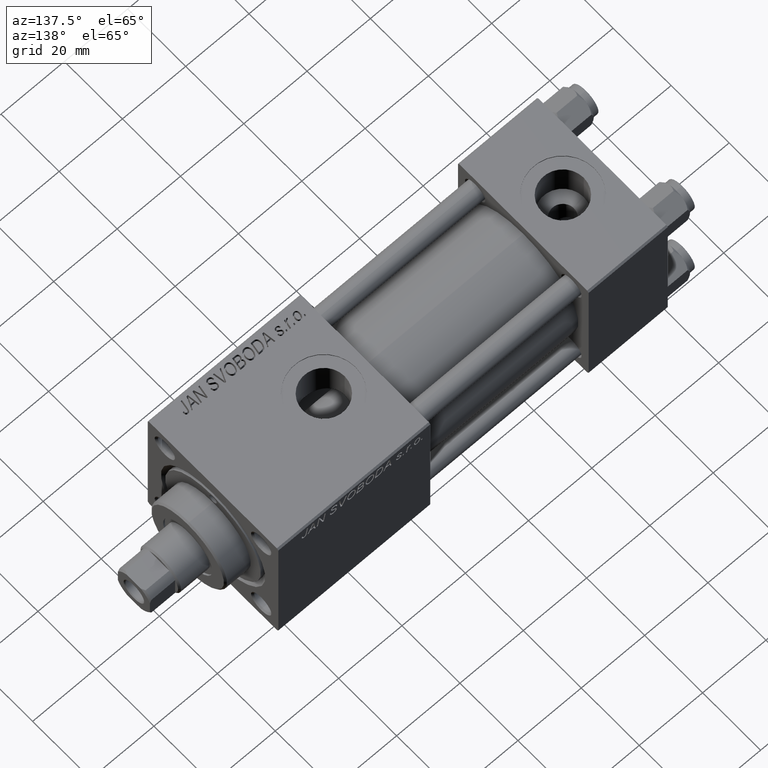
[diagram: clean part render]
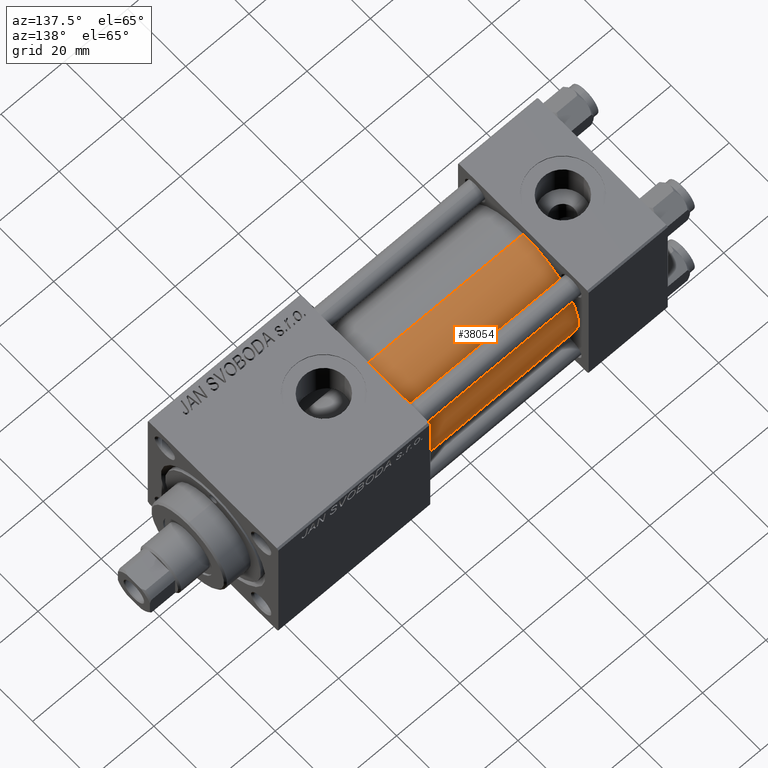
[diagram: same view with one face highlighted and labeled with its STEP entity id]
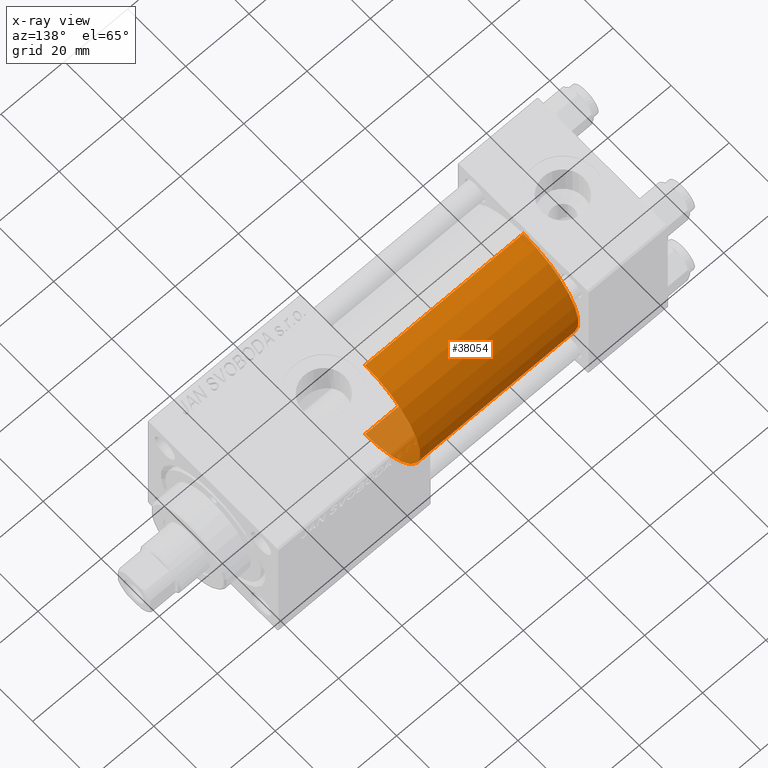
[diagram: x-ray of the same camera — body ghosted, the highlighted face saturated]
A machine part, auxiliary view. The second image highlights one B-rep face of the part: STEP entity #38054.
The next image is the same camera in x-ray: the body ghosted, the highlighted face saturated — about 7% of this face is hidden behind the body in this view.
In plain terms, the highlighted cylindrical surface (partial cylindrical patch) has radius 19 mm, axis along (-1, -0, -0).
Its self-contained STEP definition (entity closure, byte-faithful):
#281 = CIRCLE ( 'NONE', #47407, 19.00000000000000000 ) ;
#2218 = CARTESIAN_POINT ( 'NONE',  ( 75.00000000000001421, -2.602085213965210642E-15, 19.00000000000000000 ) ) ;
#2229 = DIRECTION ( 'NONE',  ( -1.000000000000000000, -0.000000000000000000, -0.000000000000000000 ) ) ;
#3539 = CARTESIAN_POINT ( 'NONE',  ( 75.00000000000001421, -2.752562955852396712E-16, -19.00000000000000000 ) ) ;
#3633 = ORIENTED_EDGE ( 'NONE', *, *, #35033, .T. ) ;
#5224 = DIRECTION ( 'NONE',  ( 0.000000000000000000, 0.000000000000000000, 1.000000000000000000 ) ) ;
#6657 = CARTESIAN_POINT ( 'NONE',  ( 25.00000000000000000, -2.752562955852396712E-16, -19.00000000000000000 ) ) ;
#7054 = CARTESIAN_POINT ( 'NONE',  ( 75.00000000000001421, -2.752562955852396712E-16, -19.00000000000000000 ) ) ;
#7438 = VERTEX_POINT ( 'NONE', #6657 ) ;
#8327 = VERTEX_POINT ( 'NONE', #3539 ) ;
#8937 = DIRECTION ( 'NONE',  ( 0.000000000000000000, 0.000000000000000000, 1.000000000000000000 ) ) ;
#11329 = VERTEX_POINT ( 'NONE', #32931 ) ;
#13358 = FACE_OUTER_BOUND ( 'NONE', #19874, .T. ) ;
#13495 = VECTOR ( 'NONE', #2229, 1000.000000000000000 ) ;
#19088 = CARTESIAN_POINT ( 'NONE',  ( 75.00000000000001421, -2.602085213965210642E-15, 0.000000000000000000 ) ) ;
#19874 = EDGE_LOOP ( 'NONE', ( #30597, #3633, #30095, #47133 ) ) ;
#20327 = DIRECTION ( 'NONE',  ( 1.000000000000000000, 0.000000000000000000, 0.000000000000000000 ) ) ;
#25041 = CARTESIAN_POINT ( 'NONE',  ( 75.00000000000001421, -2.602085213965210642E-15, 0.000000000000000000 ) ) ;
#25454 = CARTESIAN_POINT ( 'NONE',  ( 25.00000000000000000, -2.602085213965210642E-15, 0.000000000000000000 ) ) ;
#26124 = DIRECTION ( 'NONE',  ( -1.000000000000000000, -0.000000000000000000, -0.000000000000000000 ) ) ;
#27962 = DIRECTION ( 'NONE',  ( 0.000000000000000000, 0.000000000000000000, -1.000000000000000000 ) ) ;
#27992 = EDGE_CURVE ( 'NONE', #7438, #32911, #281, .T. ) ;
#28862 = CYLINDRICAL_SURFACE ( 'NONE', #32988, 19.00000000000000000 ) ;
#30095 = ORIENTED_EDGE ( 'NONE', *, *, #27992, .T. ) ;
#30597 = ORIENTED_EDGE ( 'NONE', *, *, #46823, .F. ) ;
#32911 = VERTEX_POINT ( 'NONE', #35066 ) ;
#32931 = CARTESIAN_POINT ( 'NONE',  ( 75.00000000000001421, -2.602085213965210642E-15, 19.00000000000000000 ) ) ;
#32988 = AXIS2_PLACEMENT_3D ( 'NONE', #25041, #39816, #5224 ) ;
#34423 = AXIS2_PLACEMENT_3D ( 'NONE', #19088, #20327, #27962 ) ;
#35033 = EDGE_CURVE ( 'NONE', #8327, #7438, #41923, .T. ) ;
#35066 = CARTESIAN_POINT ( 'NONE',  ( 25.00000000000000000, -2.602085213965210642E-15, 19.00000000000000000 ) ) ;
#37074 = LINE ( 'NONE', #2218, #42520 ) ;
#38054 = ADVANCED_FACE ( 'NONE', ( #13358 ), #28862, .T. ) ;
#39816 = DIRECTION ( 'NONE',  ( -1.000000000000000000, -0.000000000000000000, -0.000000000000000000 ) ) ;
#41923 = LINE ( 'NONE', #7054, #13495 ) ;
#42520 = VECTOR ( 'NONE', #26124, 1000.000000000000000 ) ;
#42564 = CIRCLE ( 'NONE', #34423, 19.00000000000000000 ) ;
#44064 = DIRECTION ( 'NONE',  ( 1.000000000000000000, -0.000000000000000000, 0.000000000000000000 ) ) ;
#46823 = EDGE_CURVE ( 'NONE', #8327, #11329, #42564, .T. ) ;
#47133 = ORIENTED_EDGE ( 'NONE', *, *, #50179, .F. ) ;
#47407 = AXIS2_PLACEMENT_3D ( 'NONE', #25454, #44064, #8937 ) ;
#50179 = EDGE_CURVE ( 'NONE', #11329, #32911, #37074, .T. ) ;